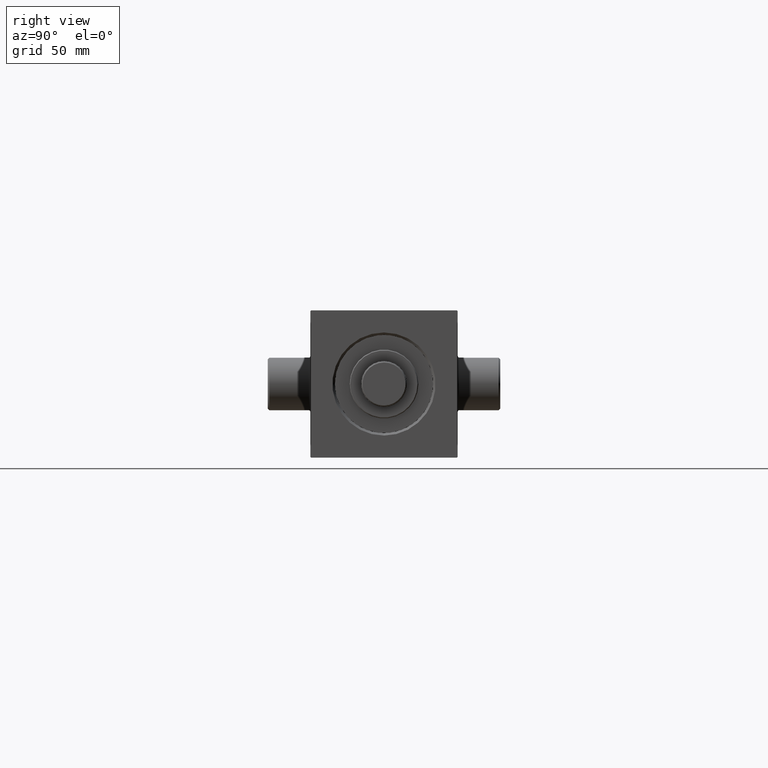
[diagram: clean part render]
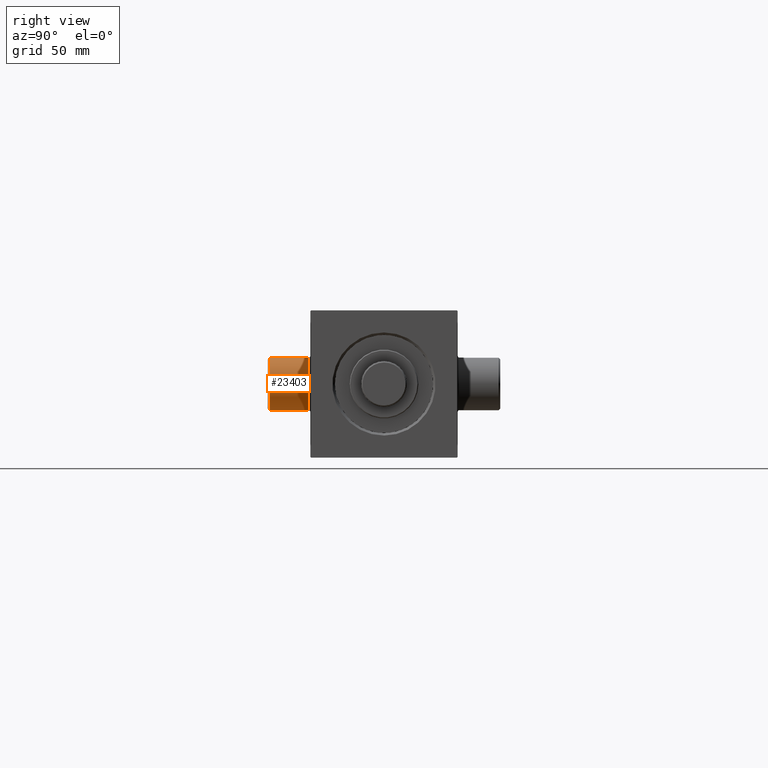
[diagram: same view with one face highlighted and labeled with its STEP entity id]
A machine part, right view. The second image highlights one B-rep face of the part: STEP entity #23403.
In plain terms, the highlighted cylindrical surface (edge-blend (fillet) strip) has radius 16 mm, axis along (0, 1, 0).
Its self-contained STEP definition (entity closure, byte-faithful):
#1712 = DIRECTION ( 'NONE',  ( 0.000000000000000000, 0.000000000000000000, 1.000000000000000000 ) ) ;
#2253 = LINE ( 'NONE', #23546, #32531 ) ;
#2635 = CARTESIAN_POINT ( 'NONE',  ( 18.50000000000000000, -70.00000000000005684, -5.637851296924629368E-15 ) ) ;
#3269 = ORIENTED_EDGE ( 'NONE', *, *, #17164, .T. ) ;
#3882 = AXIS2_PLACEMENT_3D ( 'NONE', #31941, #31483, #45880 ) ;
#8117 = ORIENTED_EDGE ( 'NONE', *, *, #30683, .T. ) ;
#8173 = CARTESIAN_POINT ( 'NONE',  ( 18.50000000000000000, -46.00000000000000000, 16.00000000000000355 ) ) ;
#8297 = VERTEX_POINT ( 'NONE', #21222 ) ;
#9171 = DIRECTION ( 'NONE',  ( -0.000000000000000000, 1.000000000000000000, 8.673617379884036705E-17 ) ) ;
#9732 = FACE_OUTER_BOUND ( 'NONE', #15528, .T. ) ;
#12728 = CARTESIAN_POINT ( 'NONE',  ( 18.50000000000000000, -46.00000000000000000, 16.00000000000000355 ) ) ;
#12801 = VERTEX_POINT ( 'NONE', #30873 ) ;
#14962 = CARTESIAN_POINT ( 'NONE',  ( 18.50000000000000355, -46.00000000000000000, -16.00000000000001066 ) ) ;
#14966 = VERTEX_POINT ( 'NONE', #14962 ) ;
#15528 = EDGE_LOOP ( 'NONE', ( #39901, #3269, #8117, #29847 ) ) ;
#16249 = AXIS2_PLACEMENT_3D ( 'NONE', #2635, #31505, #35279 ) ;
#17164 = EDGE_CURVE ( 'NONE', #8297, #14966, #2253, .T. ) ;
#17518 = CYLINDRICAL_SURFACE ( 'NONE', #3882, 16.00000000000000711 ) ;
#19682 = DIRECTION ( 'NONE',  ( 0.000000000000000000, -1.000000000000000000, -7.709882115452478166E-17 ) ) ;
#20718 = AXIS2_PLACEMENT_3D ( 'NONE', #30800, #19682, #1712 ) ;
#21222 = CARTESIAN_POINT ( 'NONE',  ( 18.50000000000000355, -70.00000000000005684, -16.00000000000001421 ) ) ;
#23403 = ADVANCED_FACE ( 'NONE', ( #9732 ), #17518, .T. ) ;
#23546 = CARTESIAN_POINT ( 'NONE',  ( 18.50000000000000355, -46.00000000000000000, -16.00000000000001066 ) ) ;
#27478 = VECTOR ( 'NONE', #9171, 1000.000000000000000 ) ;
#29847 = ORIENTED_EDGE ( 'NONE', *, *, #30088, .F. ) ;
#30088 = EDGE_CURVE ( 'NONE', #12801, #30342, #34940, .T. ) ;
#30342 = VERTEX_POINT ( 'NONE', #8173 ) ;
#30683 = EDGE_CURVE ( 'NONE', #14966, #30342, #33565, .T. ) ;
#30800 = CARTESIAN_POINT ( 'NONE',  ( 18.50000000000000000, -46.00000000000000000, -3.556183125752455332E-15 ) ) ;
#30873 = CARTESIAN_POINT ( 'NONE',  ( 18.50000000000000000, -70.00000000000005684, 16.00000000000000000 ) ) ;
#31483 = DIRECTION ( 'NONE',  ( -0.000000000000000000, 1.000000000000000000, 8.673617379884036705E-17 ) ) ;
#31505 = DIRECTION ( 'NONE',  ( 0.000000000000000000, 1.000000000000000000, 8.673617379884015751E-17 ) ) ;
#31941 = CARTESIAN_POINT ( 'NONE',  ( 18.50000000000000000, -46.00000000000000000, -3.556183125752455332E-15 ) ) ;
#32531 = VECTOR ( 'NONE', #34193, 1000.000000000000000 ) ;
#33565 = CIRCLE ( 'NONE', #20718, 16.00000000000000711 ) ;
#34193 = DIRECTION ( 'NONE',  ( -0.000000000000000000, 1.000000000000000000, 8.673617379884036705E-17 ) ) ;
#34940 = LINE ( 'NONE', #12728, #27478 ) ;
#35279 = DIRECTION ( 'NONE',  ( 0.000000000000000000, 0.000000000000000000, -1.000000000000000000 ) ) ;
#36994 = EDGE_CURVE ( 'NONE', #12801, #8297, #41918, .T. ) ;
#39901 = ORIENTED_EDGE ( 'NONE', *, *, #36994, .T. ) ;
#41918 = CIRCLE ( 'NONE', #16249, 16.00000000000000711 ) ;
#45880 = DIRECTION ( 'NONE',  ( 0.000000000000000000, 0.000000000000000000, 1.000000000000000000 ) ) ;